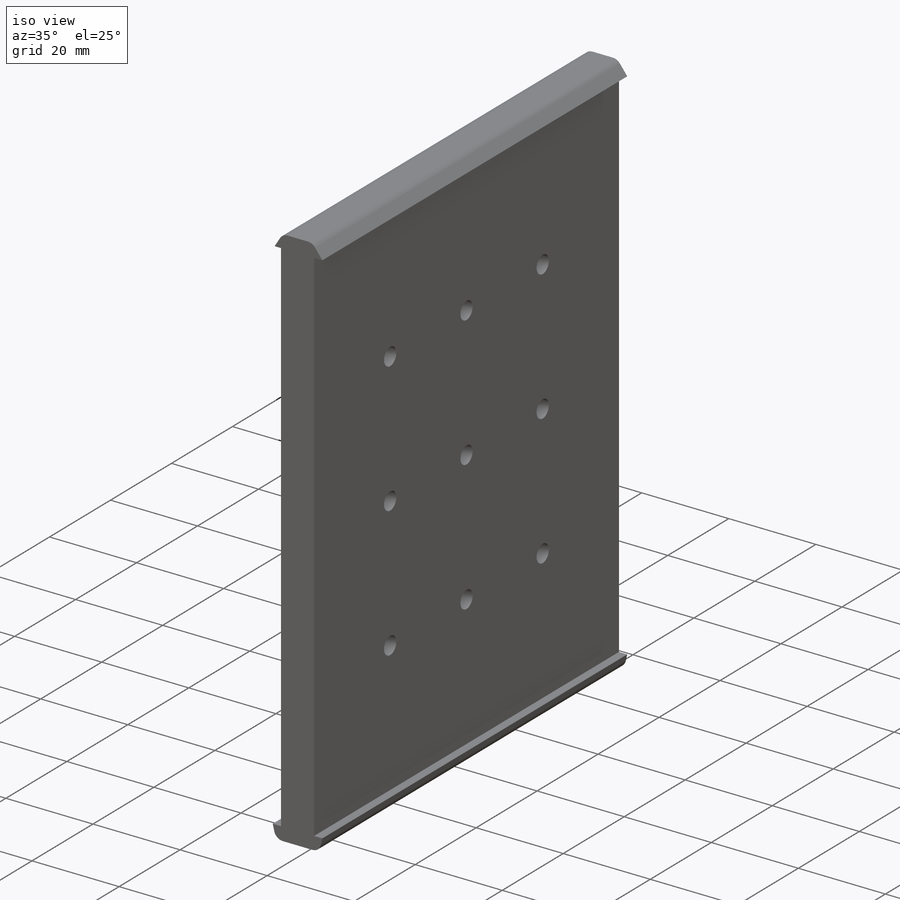
[diagram: iso view]
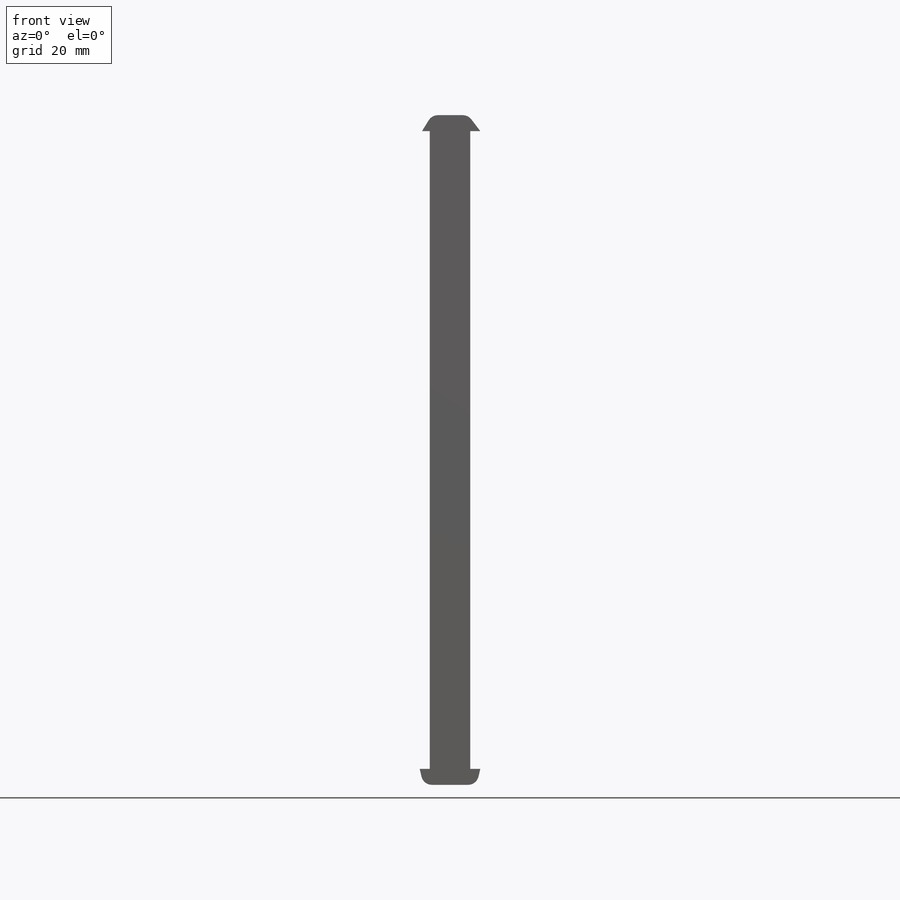
[diagram: front view]
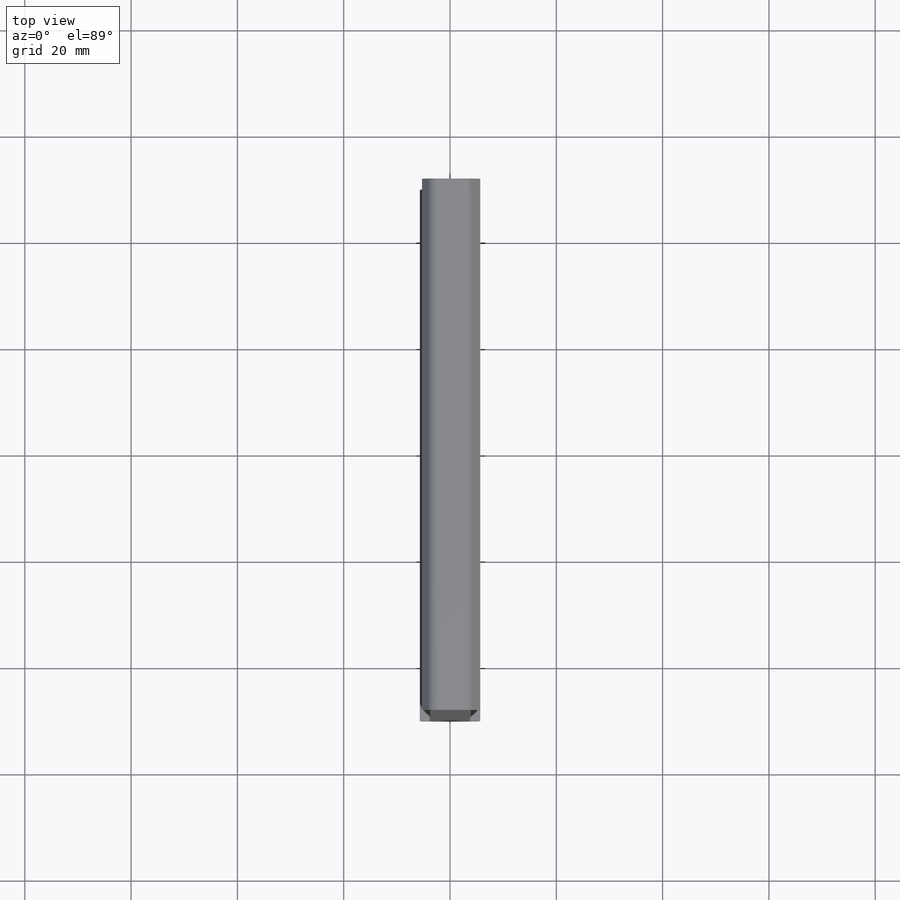
[diagram: top view]
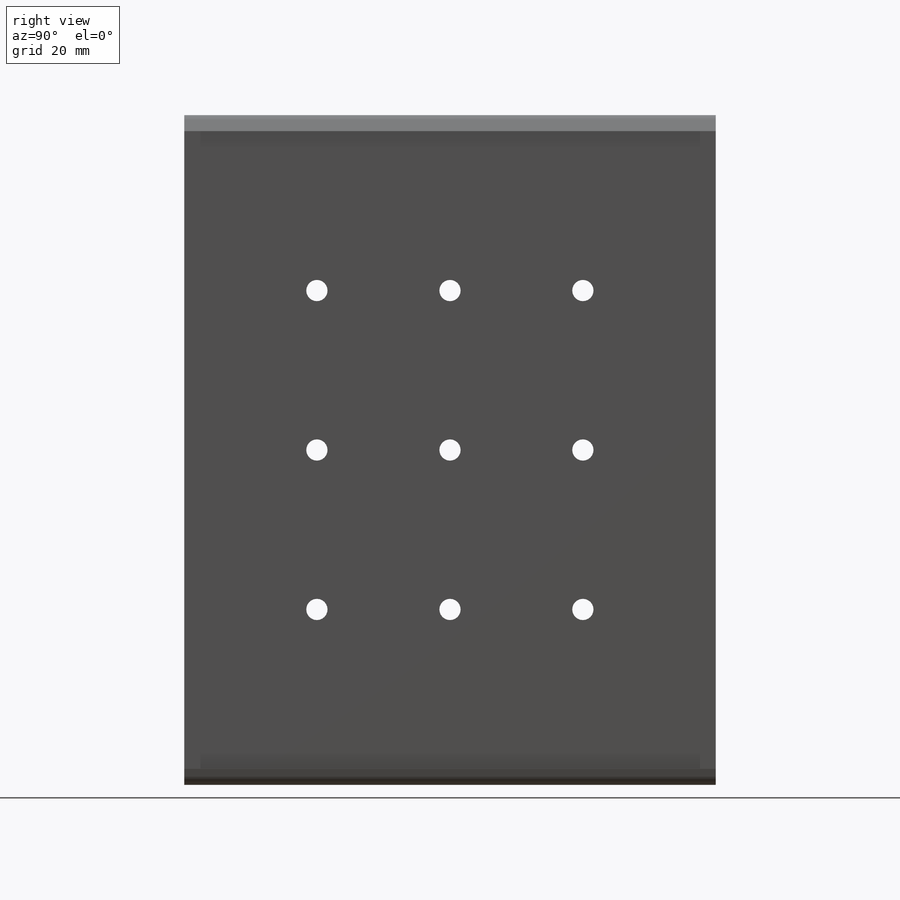
[diagram: right view]
SOLIDWORKS PART (.sldprt)
format: sldprt  version: not decoded by parser v0  size: 478,720 bytes
history: native  units: mm
features: sketch x5, cut_extrude x4, plane x3, material x1, extrude x1 (+10 scaffold rows collapsed)
feature tree (24):
  scaffold x10  (default folders/planes/origin — collapsed)
  material  "Material <não especificado>"
  plane  "Plano frontal"
  plane  "Plano superior"
  plane  "Plano direito"
  sketch  "Esboço1"  dims[c1.D9=2.0mm c1.D11=2.0mm c1.D1=10.0mm c1.D2=4.0mm c1.D3=11.4mm c1.D4=5.7mm c1.D5=5.0mm c1.D6=7.6mm c1.D7=3.8mm c1.D8=120.0mm c2.D1=5.7mm c2.D2=5.7mm c2.D10=3.0mm c2.D12=3.0mm]
  extrude  "Ressalto-extrusão1"  Depth=160mm
  sketch  "Esboço2"
  cut_extrude  "Corte-extrusão1"  Depth=30mm
  sketch  "3DSketch2"  dims[D1=160.0mm]
  cut_extrude  "Corte-extrusão2"  Depth=30mm
  sketch  "3DSketch3"  dims[c1.D1=~5.68049mm c2.D1=~1.621381mm c3.D1=~3.176313mm c4.D1=3.8mm]
  cut_extrude  "Corte-extrusão3"  Depth=70mm
  sketch  "Esboço3"  dims[D1=4.0mm]
  cut_extrude  "Corte-extrusão4"  Depth=41mm
decode coverage: 9 of 10 modeling features carry decoded parameters
note: ~ marks probable driven/reference dimensions
note: suppression state not decoded; provenance and decode notes live in map.json
